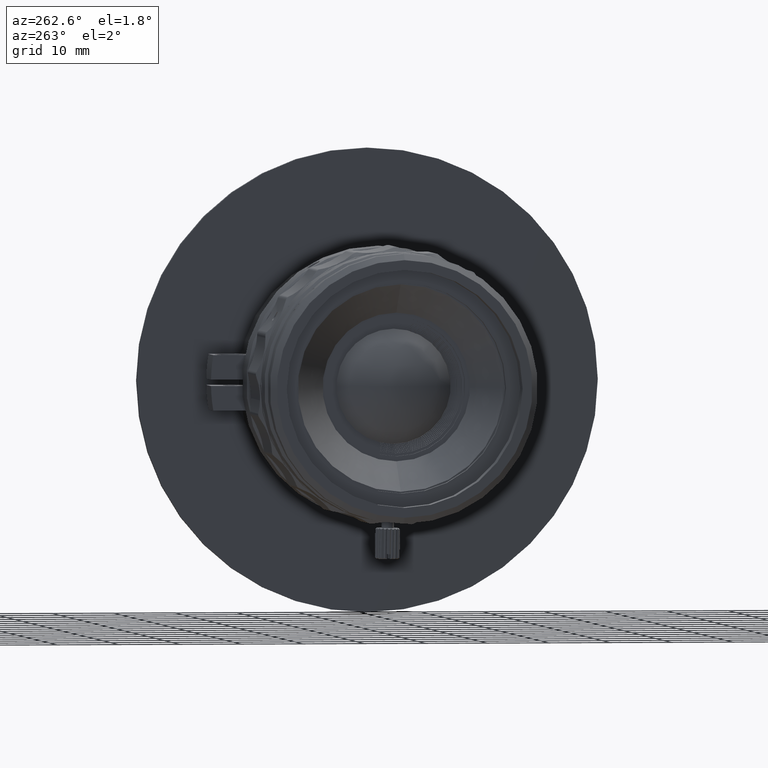
[diagram: clean part render]
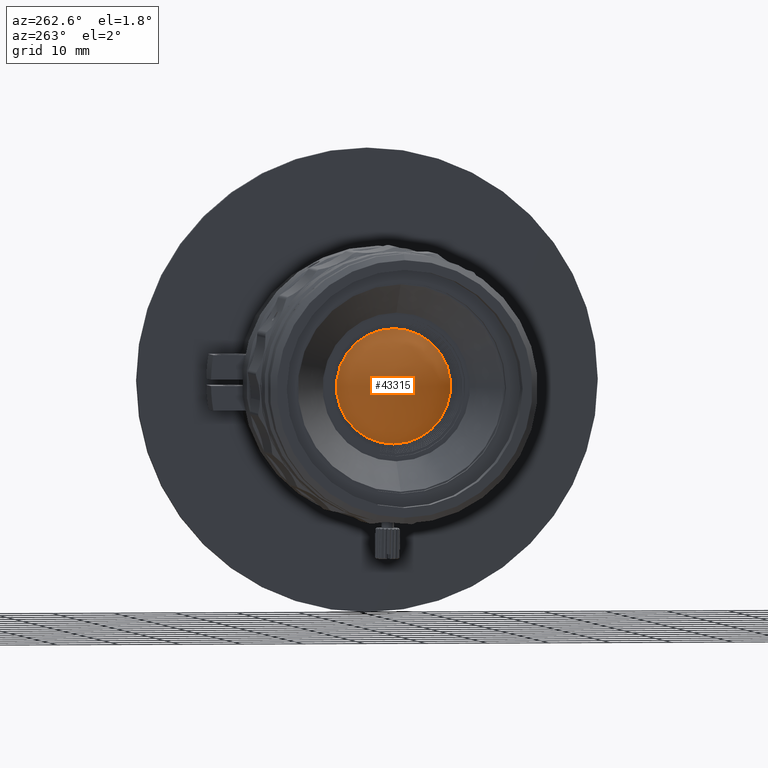
[diagram: same view with one face highlighted and labeled with its STEP entity id]
A machine part, auxiliary view. The second image highlights one B-rep face of the part: STEP entity #43315.
In plain terms, the highlighted face is a freeform B-spline surface patch.
Its self-contained STEP definition (entity closure, byte-faithful):
#3488 = CARTESIAN_POINT ( 'NONE',  ( 18.50020791470777937, 9.478791861400663876, -6.986141333328848013 ) ) ;
#6700 = AXIS2_PLACEMENT_3D ( 'NONE', #40340, #14121, #61133 ) ;
#7725 = VERTEX_POINT ( 'NONE', #55215 ) ;
#14024 = CARTESIAN_POINT ( 'NONE',  ( 14.69515216259967083, 3.831442986015684671, -10.37083206319988449 ) ) ;
#14121 = DIRECTION ( 'NONE',  ( -1.000000000000000000, -0.0000000000000000000, -0.0000000000000000000 ) ) ;
#19819 = CARTESIAN_POINT ( 'NONE',  ( 9.167210911431251219, 3.831442986015684227, 4.193753378375522090 ) ) ;
#20151 = CARTESIAN_POINT ( 'NONE',  ( 14.71560988740347575, -3.772958833588153205, 10.41515737571461564 ) ) ;
#21427 = EDGE_LOOP ( 'NONE', ( #25098, #62302 ) ) ;
#24577 = CARTESIAN_POINT ( 'NONE',  ( 9.154743871725044002, 3.831442986015684227, -4.142327269492138697 ) ) ;
#25098 = ORIENTED_EDGE ( 'NONE', *, *, #64606, .T. ) ;
#28398 = CIRCLE ( 'NONE', #48021, 9.315457168863000348 ) ;
#29694 = CARTESIAN_POINT ( 'NONE',  ( 14.72894275487027294, -9.439346563956641845, -2.799818275672008916 ) ) ;
#30362 = CARTESIAN_POINT ( 'NONE',  ( 14.76800252091467236, 9.478791861400663876, -2.790410988937109149 ) ) ;
#30703 = CARTESIAN_POINT ( 'NONE',  ( 18.52113927195028609, 9.478791861400663876, 7.009601533840640109 ) ) ;
#32149 = VERTEX_POINT ( 'NONE', #42265 ) ;
#32360 = DIRECTION ( 'NONE',  ( -1.000000000000000000, -0.0000000000000000000, -0.0000000000000000000 ) ) ;
#35471 = CARTESIAN_POINT ( 'NONE',  ( 14.73736928501675614, -9.439346563956641845, 2.834577421951639753 ) ) ;
#35812 = CARTESIAN_POINT ( 'NONE',  ( 9.151521690475444615, -3.772958833588153649, 4.197581709720506815 ) ) ;
#39883 = CARTESIAN_POINT ( 'NONE',  ( 18.49473242109016269, -9.439346563956645397, 7.033232938600610495 ) ) ;
#40340 = CARTESIAN_POINT ( 'NONE',  ( 15.69764162882000136, 0.0000000000000000000, 0.0000000000000000000 ) ) ;
#42265 = CARTESIAN_POINT ( 'NONE',  ( 15.69764162882000136, 0.0000000000000000000, -9.315457168863000348 ) ) ;
#43315 = ADVANCED_FACE ( 'NONE', ( #66476 ), #65704, .T. ) ;
#48021 = AXIS2_PLACEMENT_3D ( 'NONE', #64688, #32360, #59589 ) ;
#50138 = CARTESIAN_POINT ( 'NONE',  ( 14.68450920661362602, -3.772958833588153205, -10.38029923446129033 ) ) ;
#50479 = CARTESIAN_POINT ( 'NONE',  ( 9.139043270043051947, -3.772958833588153649, -4.146108655734064286 ) ) ;
#51298 = CIRCLE ( 'NONE', #6700, 9.315457168863000348 ) ;
#55215 = CARTESIAN_POINT ( 'NONE',  ( 15.69764162882000136, 1.140814480444233880E-15, 9.315457168863000348 ) ) ;
#55249 = CARTESIAN_POINT ( 'NONE',  ( 14.77640073822886713, 9.478791861400663876, 2.825053345759883872 ) ) ;
#56332 = EDGE_CURVE ( 'NONE', #7725, #32149, #28398, .T. ) ;
#59589 = DIRECTION ( 'NONE',  ( 0.0000000000000000000, 0.0000000000000000000, -1.000000000000000000 ) ) ;
#60693 = CARTESIAN_POINT ( 'NONE',  ( 14.72622447855487593, 3.831442986015684671, 10.40565841269214431 ) ) ;
#61133 = DIRECTION ( 'NONE',  ( 0.0000000000000000000, 0.0000000000000000000, -1.000000000000000000 ) ) ;
#61691 = CARTESIAN_POINT ( 'NONE',  ( 18.47373049815675117, -9.439346563956645397, -7.009693646932015909 ) ) ;
#62302 = ORIENTED_EDGE ( 'NONE', *, *, #56332, .T. ) ;
#64606 = EDGE_CURVE ( 'NONE', #32149, #7725, #51298, .T. ) ;
#64688 = CARTESIAN_POINT ( 'NONE',  ( 15.69764162882000136, 0.0000000000000000000, 0.0000000000000000000 ) ) ;
#65704 =( BOUNDED_SURFACE ( )  B_SPLINE_SURFACE ( 3, 3, ( 
 ( #39883, #35471, #29694, #61691 ),
 ( #20151, #35812, #50479, #50138 ),
 ( #60693, #19819, #24577, #14024 ),
 ( #30703, #55249, #30362, #3488 ) ),
 .UNSPECIFIED., .F., .F., .T. ) 
 B_SPLINE_SURFACE_WITH_KNOTS ( ( 4, 4 ),
 ( 4, 4 ),
 ( 0.0000000000000000000, 1.000000000000000000 ),
 ( 0.0000000000000000000, 1.000000000000000000 ),
 .UNSPECIFIED. ) 
 GEOMETRIC_REPRESENTATION_ITEM ( )  RATIONAL_B_SPLINE_SURFACE ( (
 ( 1.000000000000000000, 0.8307857274712020512, 0.8307857274712020512, 1.000000000000000000),
 ( 0.8292626154405781103, 0.6889395452334723391, 0.6889395452334723391, 0.8292626154405781103),
 ( 0.8292626154405781103, 0.6889395452334723391, 0.6889395452334723391, 0.8292626154405781103),
 ( 1.000000000000000000, 0.8307857274712020512, 0.8307857274712020512, 1.000000000000000000) ) ) 
 REPRESENTATION_ITEM ( '' )  SURFACE ( )  );
#66476 = FACE_OUTER_BOUND ( 'NONE', #21427, .T. ) ;